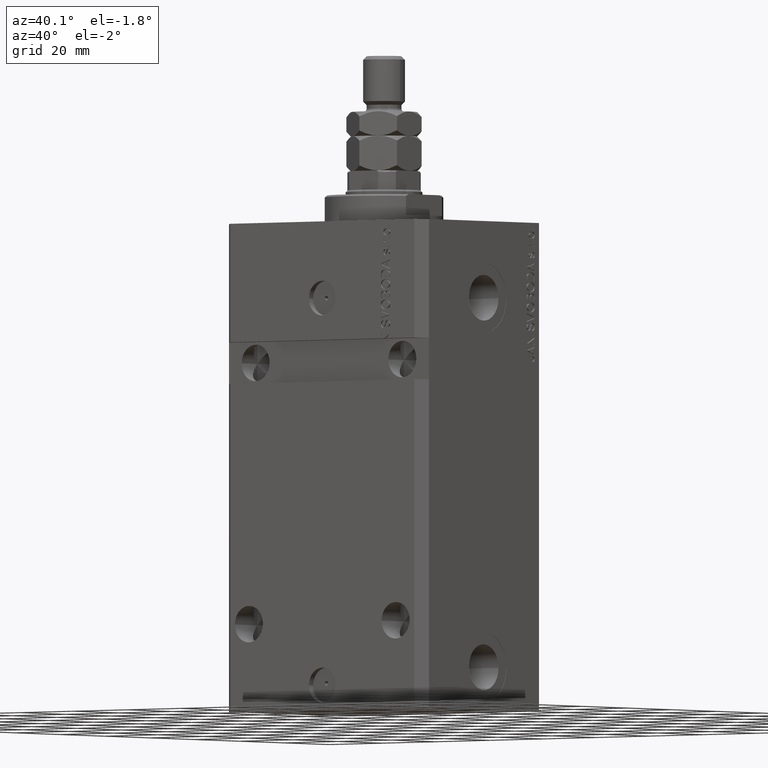
[diagram: clean part render]
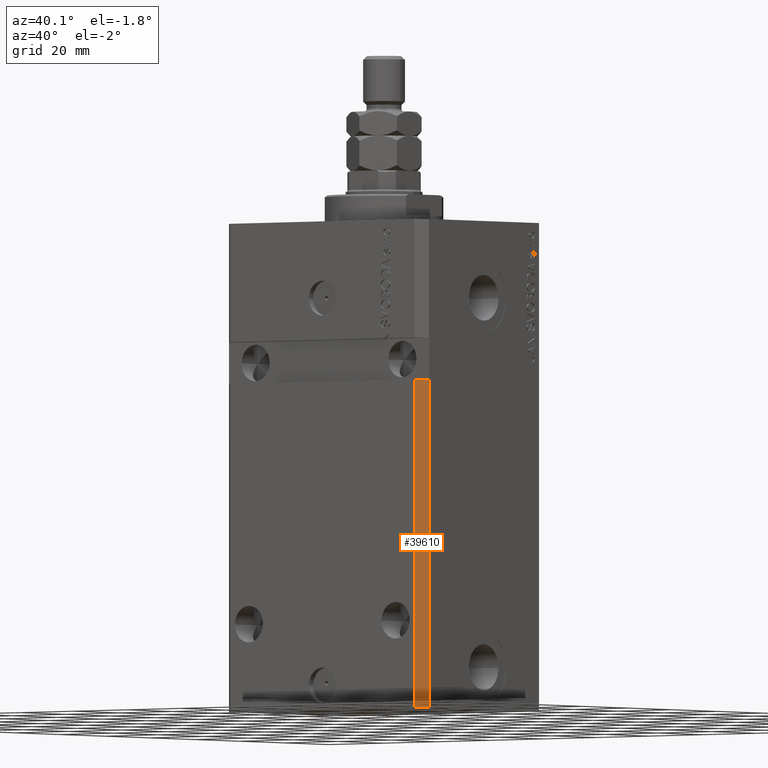
[diagram: same view with one face highlighted and labeled with its STEP entity id]
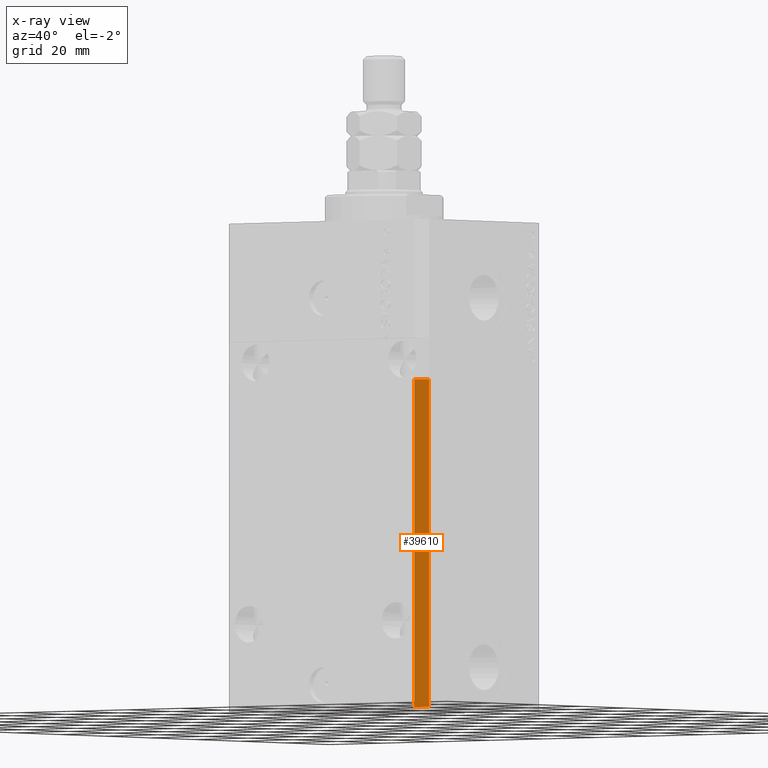
[diagram: x-ray of the same camera — body ghosted, the highlighted face saturated]
A machine part, auxiliary view. The second image highlights one B-rep face of the part: STEP entity #39610.
The next image is the same camera in x-ray: the body ghosted, the highlighted face saturated — about 0% of this face is hidden behind the body in this view.
In plain terms, the highlighted planar face has unit normal (0.7071, -0.7071, 0).
Its self-contained STEP definition (entity closure, byte-faithful):
#436 = FACE_OUTER_BOUND ( 'NONE', #8095, .T. ) ;
#3470 = DIRECTION ( 'NONE',  ( 0.7071067811865474617, 0.7071067811865474617, 0.000000000000000000 ) ) ;
#6867 = LINE ( 'NONE', #17394, #28999 ) ;
#7899 = PLANE ( 'NONE',  #40176 ) ;
#8095 = EDGE_LOOP ( 'NONE', ( #39592, #38673, #10656, #19334 ) ) ;
#10218 = EDGE_CURVE ( 'NONE', #37573, #32967, #43914, .T. ) ;
#10656 = ORIENTED_EDGE ( 'NONE', *, *, #10218, .T. ) ;
#11517 = DIRECTION ( 'NONE',  ( 0.000000000000000000, 0.000000000000000000, 1.000000000000000000 ) ) ;
#13053 = CARTESIAN_POINT ( 'NONE',  ( 37.49999999999999289, -24.50000000000000000, -140.0000000000000000 ) ) ;
#13309 = CARTESIAN_POINT ( 'NONE',  ( 34.49999999999998579, -27.50000000000000000, -46.00000000000000000 ) ) ;
#15826 = VERTEX_POINT ( 'NONE', #23016 ) ;
#17226 = CARTESIAN_POINT ( 'NONE',  ( 34.49999999999999289, -27.49999999999999645, -140.0000000000000000 ) ) ;
#17394 = CARTESIAN_POINT ( 'NONE',  ( 34.49999999999999289, -27.49999999999999645, -140.0000000000000000 ) ) ;
#17729 = DIRECTION ( 'NONE',  ( 0.7071067811865475727, -0.7071067811865475727, 0.000000000000000000 ) ) ;
#18924 = DIRECTION ( 'NONE',  ( 0.7071067811865474617, 0.7071067811865474617, 0.000000000000000000 ) ) ;
#19334 = ORIENTED_EDGE ( 'NONE', *, *, #27036, .T. ) ;
#19510 = VERTEX_POINT ( 'NONE', #34569 ) ;
#21574 = LINE ( 'NONE', #35818, #27995 ) ;
#23016 = CARTESIAN_POINT ( 'NONE',  ( 37.49999999999999289, -24.49999999999999289, -45.99999999999999289 ) ) ;
#27036 = EDGE_CURVE ( 'NONE', #32967, #15826, #21574, .T. ) ;
#27995 = VECTOR ( 'NONE', #11517, 1000.000000000000000 ) ;
#28999 = VECTOR ( 'NONE', #31649, 1000.000000000000000 ) ;
#31649 = DIRECTION ( 'NONE',  ( 0.000000000000000000, 0.000000000000000000, 1.000000000000000000 ) ) ;
#31983 = CARTESIAN_POINT ( 'NONE',  ( 34.49999999999999289, -27.49999999999999645, -140.0000000000000000 ) ) ;
#32967 = VERTEX_POINT ( 'NONE', #13053 ) ;
#34142 = VECTOR ( 'NONE', #42731, 1000.000000000000114 ) ;
#34569 = CARTESIAN_POINT ( 'NONE',  ( 34.49999999999999289, -27.49999999999999289, -45.99999999999999289 ) ) ;
#35818 = CARTESIAN_POINT ( 'NONE',  ( 37.49999999999999289, -24.50000000000000000, -140.0000000000000000 ) ) ;
#37144 = EDGE_CURVE ( 'NONE', #19510, #15826, #42502, .T. ) ;
#37573 = VERTEX_POINT ( 'NONE', #17226 ) ;
#37603 = VECTOR ( 'NONE', #18924, 1000.000000000000114 ) ;
#38673 = ORIENTED_EDGE ( 'NONE', *, *, #45712, .F. ) ;
#39592 = ORIENTED_EDGE ( 'NONE', *, *, #37144, .F. ) ;
#39610 = ADVANCED_FACE ( 'NONE', ( #436 ), #7899, .T. ) ;
#40176 = AXIS2_PLACEMENT_3D ( 'NONE', #31983, #17729, #3470 ) ;
#40399 = CARTESIAN_POINT ( 'NONE',  ( 34.49999999999999289, -27.49999999999999645, -140.0000000000000000 ) ) ;
#42502 = LINE ( 'NONE', #13309, #34142 ) ;
#42731 = DIRECTION ( 'NONE',  ( 0.7071067811865474617, 0.7071067811865474617, 6.542051911182397555E-17 ) ) ;
#43914 = LINE ( 'NONE', #40399, #37603 ) ;
#45712 = EDGE_CURVE ( 'NONE', #37573, #19510, #6867, .T. ) ;